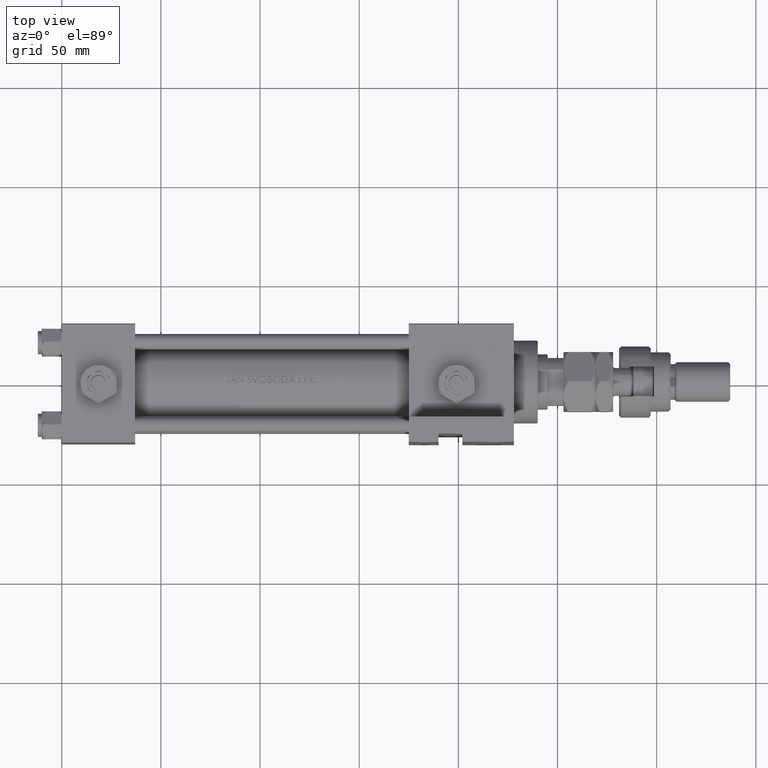
[diagram: clean part render]
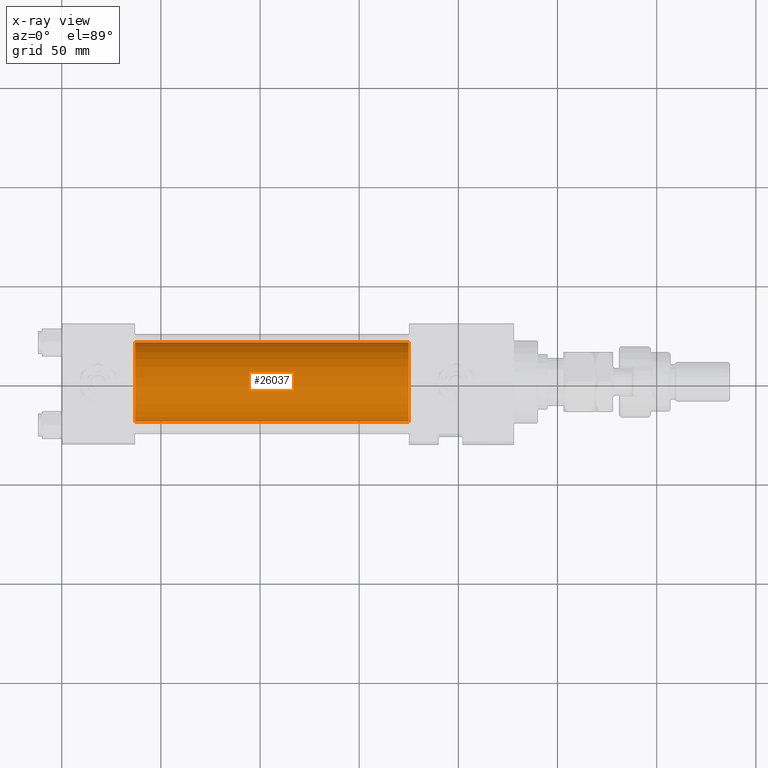
[diagram: x-ray — body ghosted, one internal face saturated and labeled with its STEP entity id]
A machine part, top view, then the same camera in x-ray: the body is ghosted and one INTERNAL B-rep face — a face not visible from any outside direction — is saturated and labeled: STEP entity #26037.
In plain terms, the highlighted cylindrical surface (partial cylindrical patch) has radius 20 mm, axis along (-1, -0, 0).
Its self-contained STEP definition (entity closure, byte-faithful):
#526 = EDGE_CURVE ( 'NONE', #34583, #6147, #25001, .T. ) ;
#2201 = ORIENTED_EDGE ( 'NONE', *, *, #526, .F. ) ;
#2252 = EDGE_CURVE ( 'NONE', #6147, #29756, #51013, .T. ) ;
#2767 = CARTESIAN_POINT ( 'NONE',  ( 175.0000000000000284, 2.326828918379970970E-15, -19.00000000000000000 ) ) ;
#2774 = CARTESIAN_POINT ( 'NONE',  ( 175.0000000000000284, 2.326828918379970970E-15, -19.00000000000000000 ) ) ;
#6019 = LINE ( 'NONE', #2767, #48115 ) ;
#6147 = VERTEX_POINT ( 'NONE', #31262 ) ;
#8419 = AXIS2_PLACEMENT_3D ( 'NONE', #43052, #30337, #50921 ) ;
#10028 = CIRCLE ( 'NONE', #40335, 20.00000000000000000 ) ;
#13963 = CARTESIAN_POINT ( 'NONE',  ( 175.0000000000000284, -1.224646799147354686E-16, 1.000000000000000888 ) ) ;
#17212 = DIRECTION ( 'NONE',  ( 1.000000000000000000, 0.000000000000000000, 0.000000000000000000 ) ) ;
#25001 = LINE ( 'NONE', #37764, #38109 ) ;
#25894 = AXIS2_PLACEMENT_3D ( 'NONE', #43405, #39599, #39335 ) ;
#26037 = ADVANCED_FACE ( 'NONE', ( #34927 ), #27051, .F. ) ;
#27051 = CYLINDRICAL_SURFACE ( 'NONE', #8419, 20.00000000000000000 ) ;
#29756 = VERTEX_POINT ( 'NONE', #32869 ) ;
#30084 = CARTESIAN_POINT ( 'NONE',  ( 175.0000000000000284, -1.224646799147354686E-16, 21.00000000000000000 ) ) ;
#30337 = DIRECTION ( 'NONE',  ( -1.000000000000000000, -0.000000000000000000, -0.000000000000000000 ) ) ;
#31262 = CARTESIAN_POINT ( 'NONE',  ( 37.00000000000000000, -1.224646799147354686E-16, 21.00000000000000000 ) ) ;
#32869 = CARTESIAN_POINT ( 'NONE',  ( 37.00000000000000000, 2.326828918379970970E-15, -19.00000000000000000 ) ) ;
#34583 = VERTEX_POINT ( 'NONE', #30084 ) ;
#34927 = FACE_OUTER_BOUND ( 'NONE', #52252, .T. ) ;
#35606 = ORIENTED_EDGE ( 'NONE', *, *, #44523, .T. ) ;
#36746 = VERTEX_POINT ( 'NONE', #2774 ) ;
#37764 = CARTESIAN_POINT ( 'NONE',  ( 175.0000000000000284, -1.224646799147354686E-16, 21.00000000000000000 ) ) ;
#38109 = VECTOR ( 'NONE', #41024, 1000.000000000000000 ) ;
#38550 = ORIENTED_EDGE ( 'NONE', *, *, #47578, .T. ) ;
#39335 = DIRECTION ( 'NONE',  ( 0.000000000000000000, 0.000000000000000000, -1.000000000000000000 ) ) ;
#39554 = ORIENTED_EDGE ( 'NONE', *, *, #2252, .F. ) ;
#39599 = DIRECTION ( 'NONE',  ( 1.000000000000000000, 0.000000000000000000, 0.000000000000000000 ) ) ;
#40335 = AXIS2_PLACEMENT_3D ( 'NONE', #13963, #17212, #50308 ) ;
#41024 = DIRECTION ( 'NONE',  ( -1.000000000000000000, -0.000000000000000000, -0.000000000000000000 ) ) ;
#43052 = CARTESIAN_POINT ( 'NONE',  ( 175.0000000000000284, -1.224646799147354686E-16, 1.000000000000000888 ) ) ;
#43405 = CARTESIAN_POINT ( 'NONE',  ( 37.00000000000000000, -1.224646799147354686E-16, 1.000000000000000888 ) ) ;
#44523 = EDGE_CURVE ( 'NONE', #34583, #36746, #10028, .T. ) ;
#47493 = DIRECTION ( 'NONE',  ( -1.000000000000000000, -0.000000000000000000, -0.000000000000000000 ) ) ;
#47578 = EDGE_CURVE ( 'NONE', #36746, #29756, #6019, .T. ) ;
#48115 = VECTOR ( 'NONE', #47493, 1000.000000000000000 ) ;
#50308 = DIRECTION ( 'NONE',  ( 0.000000000000000000, 0.000000000000000000, -1.000000000000000000 ) ) ;
#50921 = DIRECTION ( 'NONE',  ( 0.000000000000000000, 0.000000000000000000, 1.000000000000000000 ) ) ;
#51013 = CIRCLE ( 'NONE', #25894, 20.00000000000000000 ) ;
#52252 = EDGE_LOOP ( 'NONE', ( #35606, #38550, #39554, #2201 ) ) ;